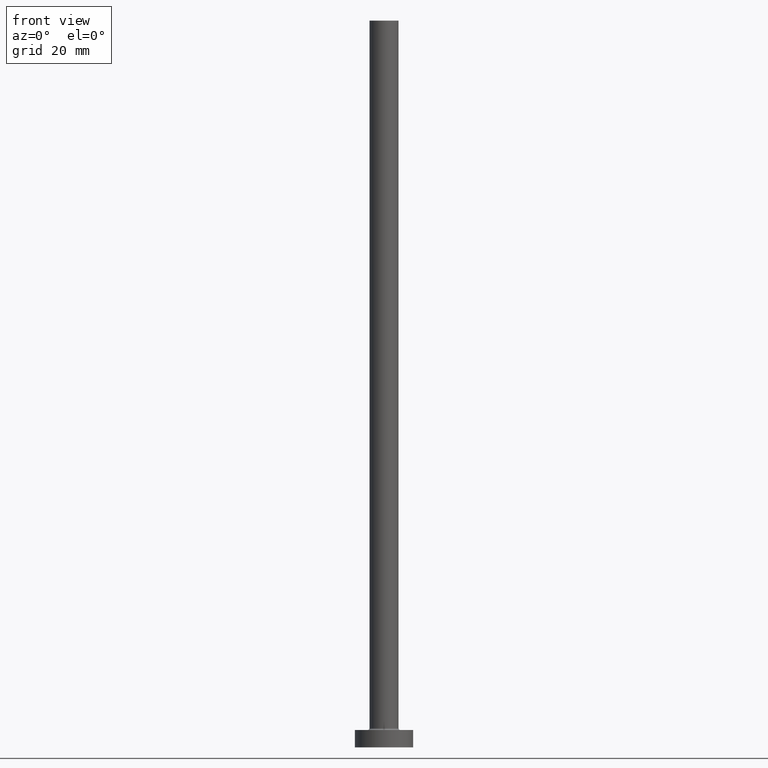
[diagram: clean part render]
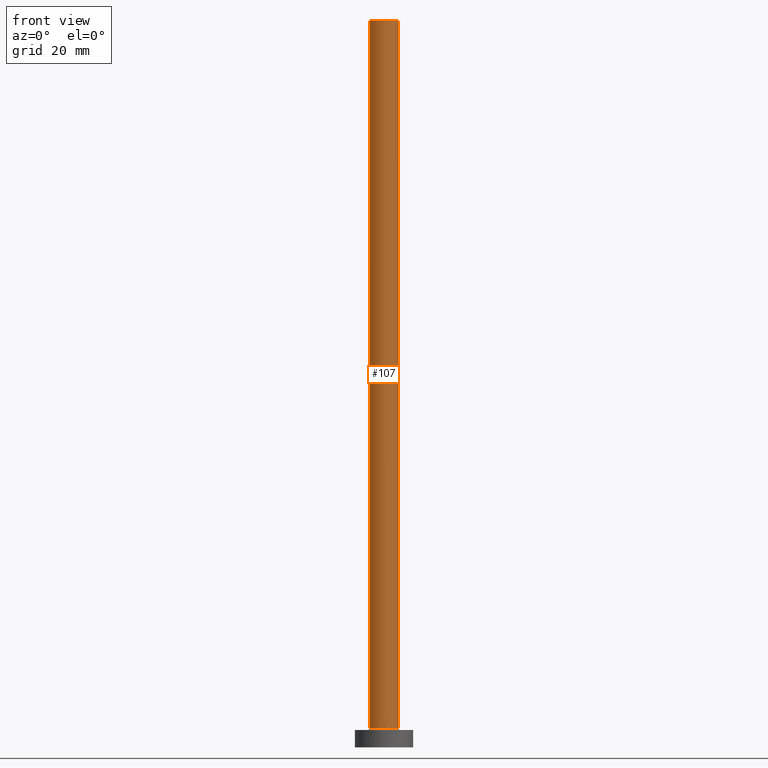
[diagram: same view with one face highlighted and labeled with its STEP entity id]
A machine part, front view. The second image highlights one B-rep face of the part: STEP entity #107.
In plain terms, the highlighted cylindrical surface (edge-blend (fillet) strip) has radius 2.5 mm, axis along (-0, -0, -1).
Its self-contained STEP definition (entity closure, byte-faithful):
#6 = AXIS2_PLACEMENT_3D ( 'NONE', #183, #56, #448 ) ;
#8 = AXIS2_PLACEMENT_3D ( 'NONE', #420, #246, #314 ) ;
#19 = DIRECTION ( 'NONE',  ( -0.000000000000000000, -0.000000000000000000, -1.000000000000000000 ) ) ;
#32 = VERTEX_POINT ( 'NONE', #281 ) ;
#56 = DIRECTION ( 'NONE',  ( 0.000000000000000000, 0.000000000000000000, 1.000000000000000000 ) ) ;
#57 = CYLINDRICAL_SURFACE ( 'NONE', #8, 2.500000000000000000 ) ;
#59 = CARTESIAN_POINT ( 'NONE',  ( 0.000000000000000000, 0.000000000000000000, 125.0000000000000000 ) ) ;
#61 = ORIENTED_EDGE ( 'NONE', *, *, #89, .F. ) ;
#84 = FACE_OUTER_BOUND ( 'NONE', #106, .T. ) ;
#86 = CARTESIAN_POINT ( 'NONE',  ( -2.500000000000000000, 0.000000000000000000, 3.299999999999997158 ) ) ;
#89 = EDGE_CURVE ( 'NONE', #32, #307, #98, .T. ) ;
#98 = CIRCLE ( 'NONE', #277, 2.500000000000000000 ) ;
#106 = EDGE_LOOP ( 'NONE', ( #276, #61, #445, #156 ) ) ;
#107 = ADVANCED_FACE ( 'NONE', ( #84 ), #57, .T. ) ;
#110 = LINE ( 'NONE', #404, #230 ) ;
#113 = EDGE_CURVE ( 'NONE', #307, #371, #316, .T. ) ;
#116 = VERTEX_POINT ( 'NONE', #86 ) ;
#124 = DIRECTION ( 'NONE',  ( 0.000000000000000000, 0.000000000000000000, 1.000000000000000000 ) ) ;
#155 = DIRECTION ( 'NONE',  ( -0.000000000000000000, -0.000000000000000000, -1.000000000000000000 ) ) ;
#156 = ORIENTED_EDGE ( 'NONE', *, *, #435, .T. ) ;
#164 = VECTOR ( 'NONE', #19, 1000.000000000000000 ) ;
#183 = CARTESIAN_POINT ( 'NONE',  ( 0.000000000000000000, 0.000000000000000000, 3.299999999999997158 ) ) ;
#197 = CIRCLE ( 'NONE', #6, 2.500000000000000000 ) ;
#230 = VECTOR ( 'NONE', #155, 1000.000000000000000 ) ;
#246 = DIRECTION ( 'NONE',  ( -0.000000000000000000, -0.000000000000000000, -1.000000000000000000 ) ) ;
#276 = ORIENTED_EDGE ( 'NONE', *, *, #113, .F. ) ;
#277 = AXIS2_PLACEMENT_3D ( 'NONE', #59, #124, #415 ) ;
#281 = CARTESIAN_POINT ( 'NONE',  ( -2.500000000000000000, 0.000000000000000000, 125.0000000000000000 ) ) ;
#306 = CARTESIAN_POINT ( 'NONE',  ( 2.500000000000000000, 3.061616997868382648E-16, 125.0000000000000000 ) ) ;
#307 = VERTEX_POINT ( 'NONE', #306 ) ;
#314 = DIRECTION ( 'NONE',  ( -1.000000000000000000, 0.000000000000000000, 0.000000000000000000 ) ) ;
#316 = LINE ( 'NONE', #350, #164 ) ;
#350 = CARTESIAN_POINT ( 'NONE',  ( 2.500000000000000000, 3.061616997868382648E-16, 125.0000000000000000 ) ) ;
#371 = VERTEX_POINT ( 'NONE', #396 ) ;
#394 = EDGE_CURVE ( 'NONE', #32, #116, #110, .T. ) ;
#396 = CARTESIAN_POINT ( 'NONE',  ( 2.500000000000000000, 3.061616997868382648E-16, 3.299999999999997158 ) ) ;
#404 = CARTESIAN_POINT ( 'NONE',  ( -2.500000000000000000, 0.000000000000000000, 125.0000000000000000 ) ) ;
#415 = DIRECTION ( 'NONE',  ( 1.000000000000000000, 0.000000000000000000, 0.000000000000000000 ) ) ;
#420 = CARTESIAN_POINT ( 'NONE',  ( 0.000000000000000000, 0.000000000000000000, 125.0000000000000000 ) ) ;
#435 = EDGE_CURVE ( 'NONE', #116, #371, #197, .T. ) ;
#445 = ORIENTED_EDGE ( 'NONE', *, *, #394, .T. ) ;
#448 = DIRECTION ( 'NONE',  ( 1.000000000000000000, 0.000000000000000000, 0.000000000000000000 ) ) ;